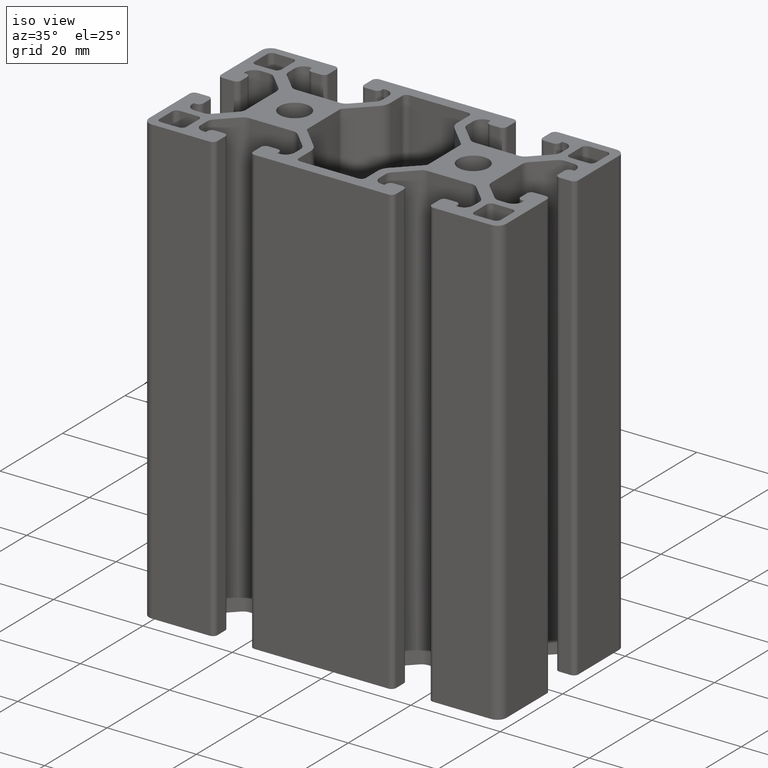
[diagram: clean part render]
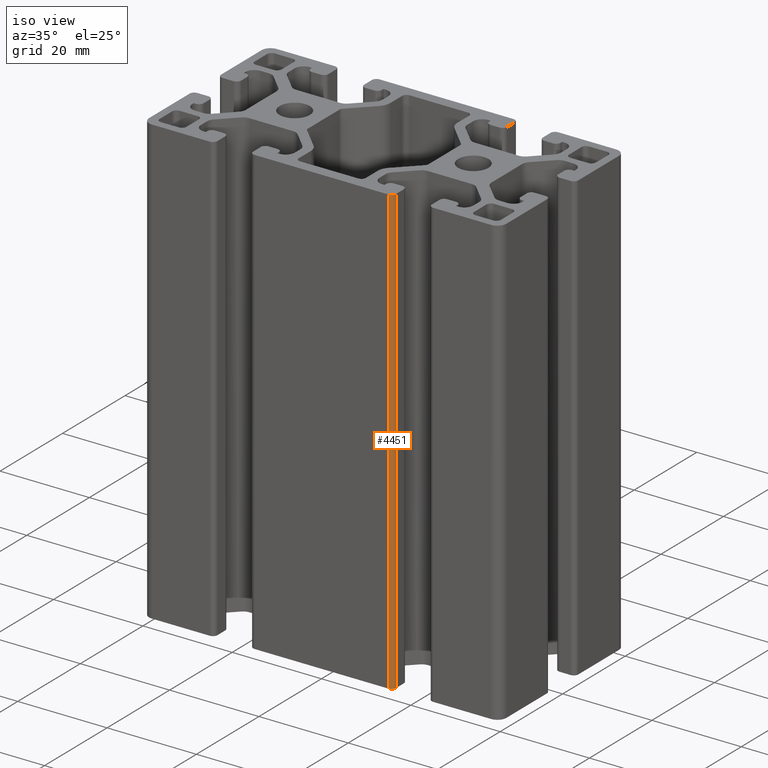
[diagram: same view with one face highlighted and labeled with its STEP entity id]
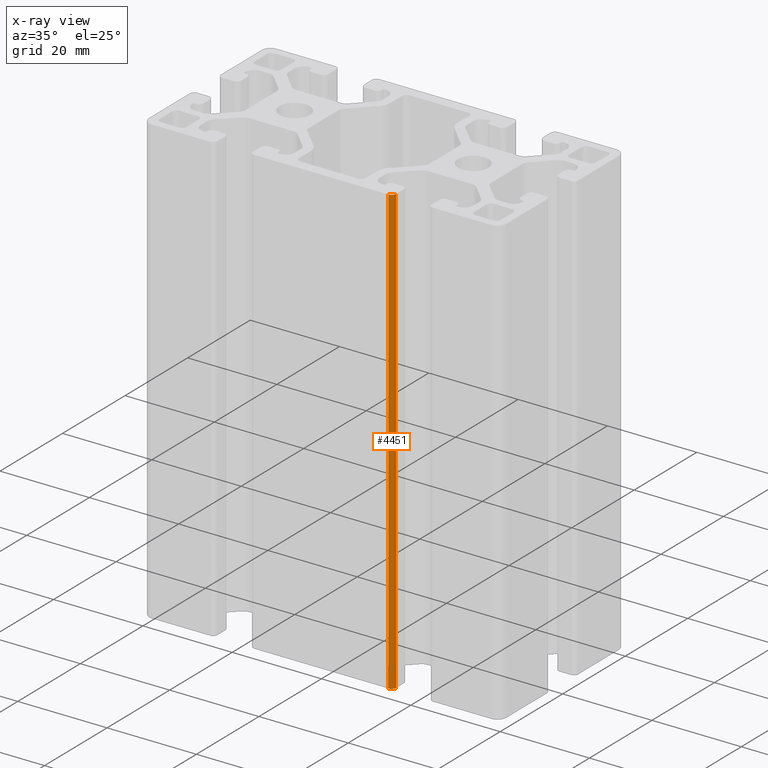
[diagram: x-ray of the same camera — body ghosted, the highlighted face saturated]
A machine part, iso view. The second image highlights one B-rep face of the part: STEP entity #4451.
The next image is the same camera in x-ray: the body ghosted, the highlighted face saturated — about 0% of this face is hidden behind the body in this view.
In plain terms, the highlighted cylindrical surface (edge-blend (fillet) strip) has radius 1 mm, axis along (0, 0, 1).
Its self-contained STEP definition (entity closure, byte-faithful):
#499=LINE('',#7354,#951);
#501=LINE('',#7360,#953);
#951=VECTOR('',#6013,100.);
#953=VECTOR('',#6019,100.);
#1233=FACE_OUTER_BOUND('',#1459,.T.);
#1459=EDGE_LOOP('',(#3553,#3554,#3555,#3556));
#1693=CIRCLE('',#4854,0.999998004051166);
#1694=CIRCLE('',#4855,0.999998004051166);
#2099=VERTEX_POINT('',#7351);
#2100=VERTEX_POINT('',#7353);
#2101=VERTEX_POINT('',#7357);
#2102=VERTEX_POINT('',#7359);
#2715=EDGE_CURVE('',#2100,#2099,#499,.T.);
#2717=EDGE_CURVE('',#2101,#2099,#1693,.T.);
#2718=EDGE_CURVE('',#2101,#2102,#501,.T.);
#2719=EDGE_CURVE('',#2100,#2102,#1694,.T.);
#3553=ORIENTED_EDGE('',*,*,#2717,.F.);
#3554=ORIENTED_EDGE('',*,*,#2718,.T.);
#3555=ORIENTED_EDGE('',*,*,#2719,.F.);
#3556=ORIENTED_EDGE('',*,*,#2715,.T.);
#4253=CYLINDRICAL_SURFACE('',#4853,0.999998004051166);
#4451=ADVANCED_FACE('',(#1233),#4253,.T.);
#4853=AXIS2_PLACEMENT_3D('',#7356,#6015,#6016);
#4854=AXIS2_PLACEMENT_3D('',#7358,#6017,#6018);
#4855=AXIS2_PLACEMENT_3D('',#7361,#6020,#6021);
#6013=DIRECTION('',(0.,0.,1.));
#6015=DIRECTION('center_axis',(0.,0.,1.));
#6016=DIRECTION('ref_axis',(0.,1.,0.));
#6017=DIRECTION('center_axis',(0.,0.,1.));
#6018=DIRECTION('ref_axis',(0.,1.,0.));
#6019=DIRECTION('',(0.,0.,-1.));
#6020=DIRECTION('center_axis',(0.,0.,-1.));
#6021=DIRECTION('ref_axis',(0.,1.,0.));
#7351=CARTESIAN_POINT('',(16.,-19.0000019959488,100.));
#7353=CARTESIAN_POINT('',(16.,-19.0000019959488,0.));
#7354=CARTESIAN_POINT('',(16.,-19.0000019959488,0.));
#7356=CARTESIAN_POINT('Origin',(15.0000019959489,-19.0000019959489,0.));
#7357=CARTESIAN_POINT('',(15.0000019959489,-20.,100.));
#7358=CARTESIAN_POINT('Origin',(15.0000019959489,-19.0000019959489,100.));
#7359=CARTESIAN_POINT('',(15.0000019959489,-20.,0.));
#7360=CARTESIAN_POINT('',(15.0000019959489,-20.,0.));
#7361=CARTESIAN_POINT('Origin',(15.0000019959489,-19.0000019959489,0.));